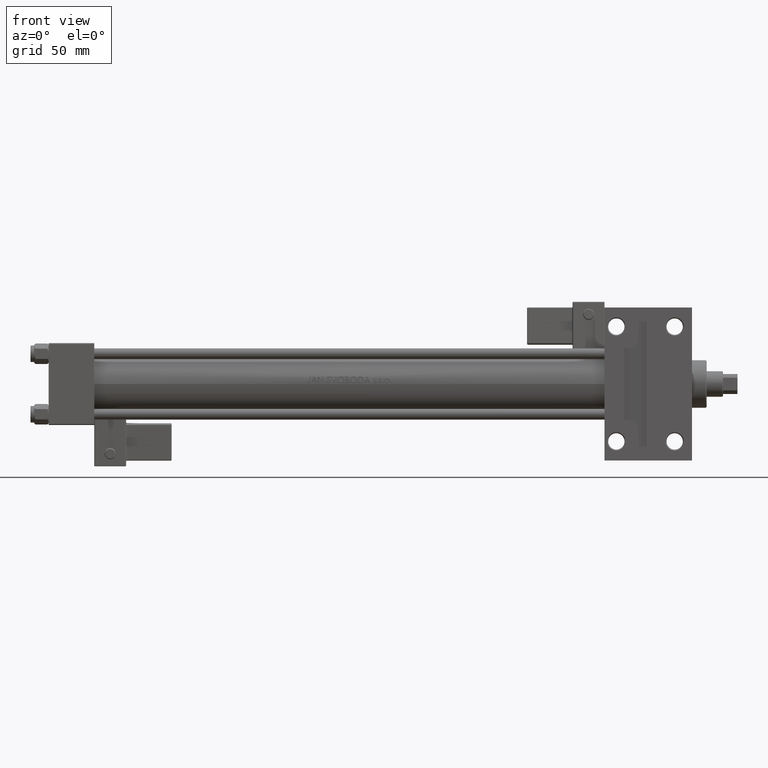
[diagram: clean part render]
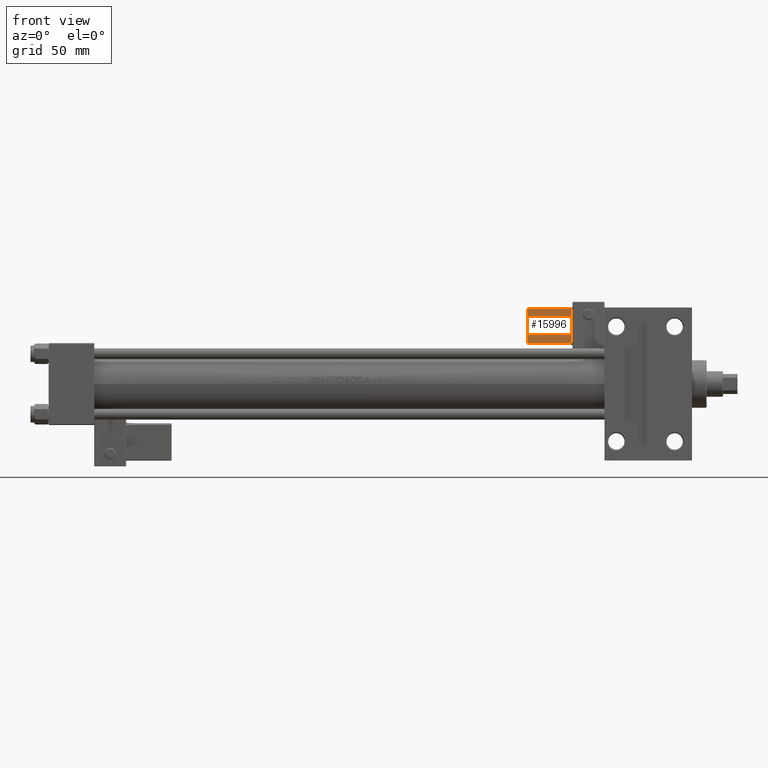
[diagram: same view with one face highlighted and labeled with its STEP entity id]
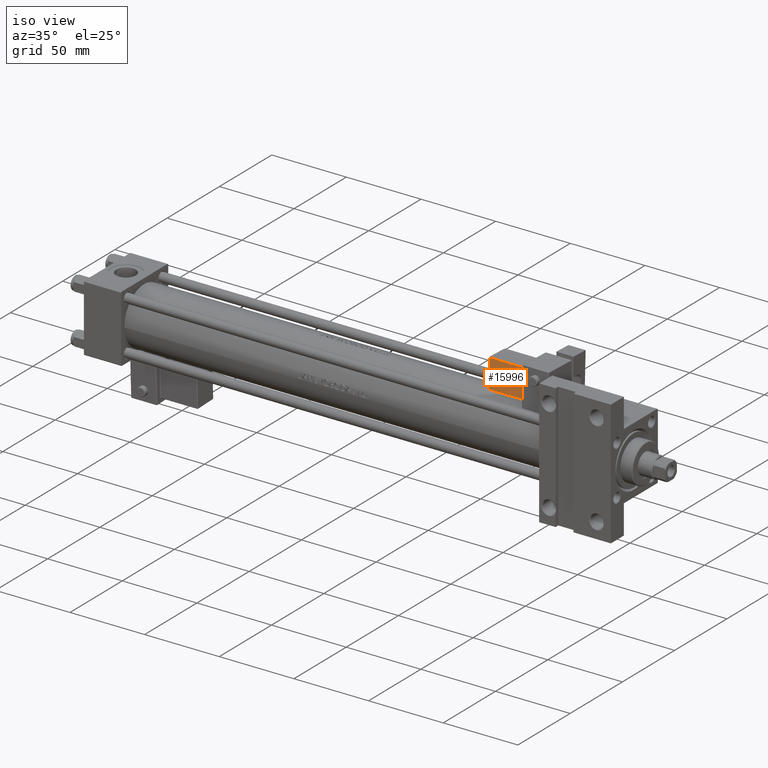
[diagram: same view with one face highlighted and labeled with its STEP entity id]
A machine part, front view. The second image highlights one B-rep face of the part: STEP entity #15996.
A second angle (iso view) of the same face is appended — the face is thin or edge-on in the first view.
In plain terms, the highlighted planar face has unit normal (0, 0.9994, -0.0353).
Its self-contained STEP definition (entity closure, byte-faithful):
#5258 = VERTEX_POINT ( 'NONE', #24364 ) ;
#5494 = AXIS2_PLACEMENT_3D ( 'NONE', #14046, #32496, #25422 ) ;
#10211 = VECTOR ( 'NONE', #28997, 1000.000000000000000 ) ;
#13970 = EDGE_CURVE ( 'NONE', #28906, #5258, #47803, .T. ) ;
#14046 = CARTESIAN_POINT ( 'NONE',  ( 33.75000000000000000, -30.25000000000000000, 22.00000000000000355 ) ) ;
#14820 = EDGE_CURVE ( 'NONE', #5258, #31371, #19734, .T. ) ;
#15996 = ADVANCED_FACE ( 'NONE', ( #48454 ), #25170, .F. ) ;
#18009 = ORIENTED_EDGE ( 'NONE', *, *, #45675, .T. ) ;
#18602 = CARTESIAN_POINT ( 'NONE',  ( 9.250000000000005329, -30.25000000000000000, 2.500000000000003109 ) ) ;
#19734 = LINE ( 'NONE', #46060, #36914 ) ;
#21844 = ORIENTED_EDGE ( 'NONE', *, *, #14820, .T. ) ;
#22400 = CARTESIAN_POINT ( 'NONE',  ( 33.75000000000000000, -30.25000000000000000, 2.500000000000005773 ) ) ;
#22414 = ORIENTED_EDGE ( 'NONE', *, *, #49973, .T. ) ;
#23975 = VECTOR ( 'NONE', #35419, 1000.000000000000000 ) ;
#24364 = CARTESIAN_POINT ( 'NONE',  ( 33.24999999999999289, -30.25000000000000000, 21.50000000000000000 ) ) ;
#25170 = PLANE ( 'NONE',  #5494 ) ;
#25422 = DIRECTION ( 'NONE',  ( 0.000000000000000000, -0.000000000000000000, 1.000000000000000000 ) ) ;
#25707 = LINE ( 'NONE', #22400, #10211 ) ;
#26147 = VECTOR ( 'NONE', #30234, 1000.000000000000000 ) ;
#26932 = LINE ( 'NONE', #41359, #26147 ) ;
#28906 = VERTEX_POINT ( 'NONE', #41473 ) ;
#28997 = DIRECTION ( 'NONE',  ( 1.000000000000000000, -0.000000000000000000, 1.334402673828313339E-16 ) ) ;
#30234 = DIRECTION ( 'NONE',  ( 1.334402673828313339E-16, 0.000000000000000000, -1.000000000000000000 ) ) ;
#31371 = VERTEX_POINT ( 'NONE', #44578 ) ;
#32496 = DIRECTION ( 'NONE',  ( -0.000000000000000000, 1.000000000000000000, 0.000000000000000000 ) ) ;
#32689 = ORIENTED_EDGE ( 'NONE', *, *, #13970, .T. ) ;
#35419 = DIRECTION ( 'NONE',  ( -1.734723475976807341E-16, -0.000000000000000000, 1.000000000000000000 ) ) ;
#36914 = VECTOR ( 'NONE', #47046, 1000.000000000000000 ) ;
#40999 = EDGE_LOOP ( 'NONE', ( #18009, #22414, #32689, #21844 ) ) ;
#41359 = CARTESIAN_POINT ( 'NONE',  ( 9.250000000000005329, -30.25000000000000000, 2.000000000000001776 ) ) ;
#41473 = CARTESIAN_POINT ( 'NONE',  ( 33.24999999999999289, -30.25000000000000000, 2.500000000000006661 ) ) ;
#44578 = CARTESIAN_POINT ( 'NONE',  ( 9.250000000000001776, -30.25000000000000000, 21.50000000000000000 ) ) ;
#45622 = VERTEX_POINT ( 'NONE', #18602 ) ;
#45675 = EDGE_CURVE ( 'NONE', #31371, #45622, #26932, .T. ) ;
#46060 = CARTESIAN_POINT ( 'NONE',  ( 33.75000000000000000, -30.25000000000000000, 21.50000000000000000 ) ) ;
#47046 = DIRECTION ( 'NONE',  ( -1.000000000000000000, 0.000000000000000000, -1.334402673828313339E-16 ) ) ;
#47294 = CARTESIAN_POINT ( 'NONE',  ( 33.24999999999999289, -30.25000000000000000, 22.00000000000000355 ) ) ;
#47803 = LINE ( 'NONE', #47294, #23975 ) ;
#48454 = FACE_OUTER_BOUND ( 'NONE', #40999, .T. ) ;
#49973 = EDGE_CURVE ( 'NONE', #45622, #28906, #25707, .T. ) ;